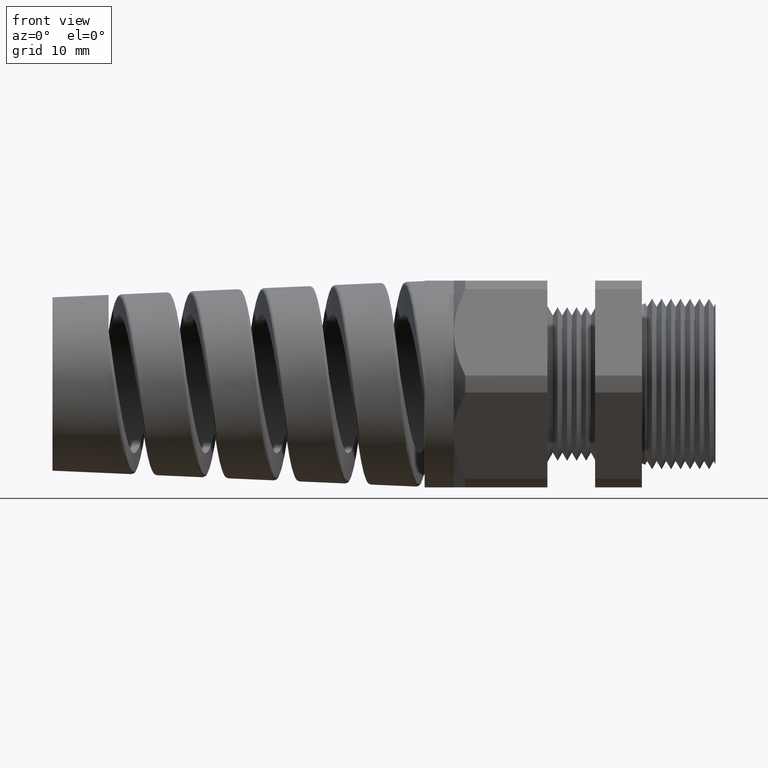
[diagram: clean part render]
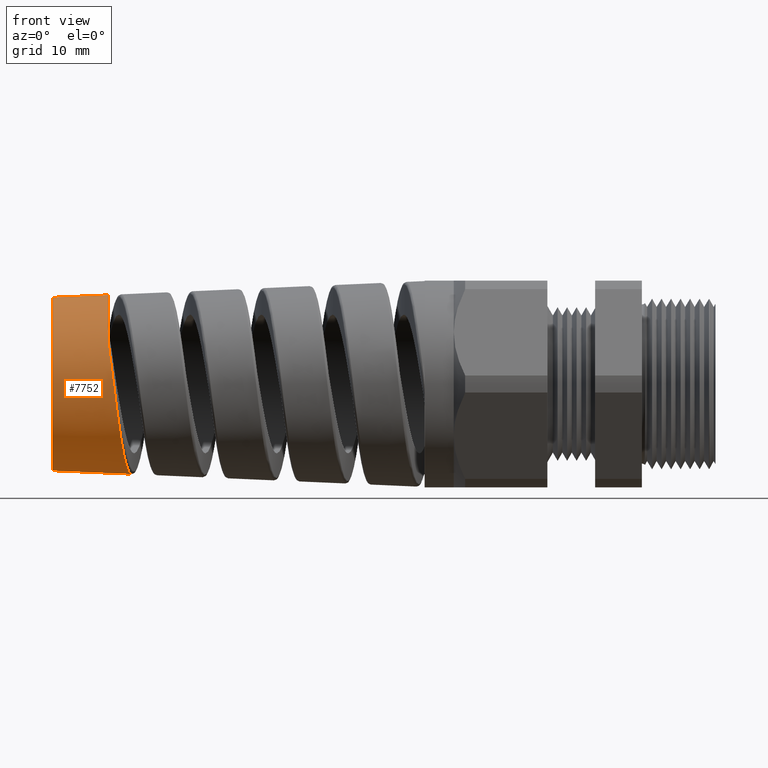
[diagram: same view with one face highlighted and labeled with its STEP entity id]
A machine part, front view. The second image highlights one B-rep face of the part: STEP entity #7752.
In plain terms, the highlighted conical surface has half-angle 2.5 deg.
Its self-contained STEP definition (entity closure, byte-faithful):
#1213 = DIRECTION ( 'NONE',  ( 0.0000000000000000000, 0.0000000000000000000, 1.000000000000000000 ) ) ;
#1214 = DIRECTION ( 'NONE',  ( -1.000000000000000000, 0.0000000000000000000, 0.0000000000000000000 ) ) ;
#1215 = CARTESIAN_POINT ( 'NONE',  ( -2.553780000000000200, 0.0000000000000000000, 0.0000000000000000000 ) ) ;
#1216 = AXIS2_PLACEMENT_3D ( 'NONE', #1215, #1214, #1213 ) ;
#1221 = CIRCLE ( 'NONE', #1216, 0.3750194698511452600 ) ;
#1324 = CARTESIAN_POINT ( 'NONE',  ( -2.553779999999999700, -0.3402502071961909200, 0.1577003464497846700 ) ) ;
#1325 = B_SPLINE_CURVE_WITH_KNOTS ( 'NONE', 3,
 ( #1385, #1384, #1383, #1382, #1381, #1380, #1379, #1378, #1377, #1376, #1375, #1374, #1373, #1372, #1371, #1370, #1369, #1368, #1367, #1366, #1365, #1364, #1363, #1362, #1361, #1360, #1359, #1358 ),
 .UNSPECIFIED., .F., .F.,
 ( 4, 2, 2, 2, 2, 2, 2, 2, 2, 2, 2, 2, 2, 4 ),
 ( 0.2649667563177139400, 0.2673754482317986000, 0.2685797941888409300, 0.2697841401458832600, 0.2709884861029255900, 0.2721928320599679200, 0.2733971780170102500, 0.2746015239740525700, 0.2770102158881372300, 0.2782145618451795600, 0.2794189078022218900, 0.2806232537592642200, 0.2818275997163065500, 0.2842362916303912100 ),
 .UNSPECIFIED. ) ;
#1326 = CARTESIAN_POINT ( 'NONE',  ( -2.790000472440945100, 0.0000000000000000000, 0.0000000000000000000 ) ) ;
#1327 = DIRECTION ( 'NONE',  ( 0.0000000000000000000, 0.0000000000000000000, -1.000000000000000000 ) ) ;
#1328 = DIRECTION ( 'NONE',  ( 1.000000000000000000, 0.0000000000000000000, 0.0000000000000000000 ) ) ;
#1329 = CARTESIAN_POINT ( 'NONE',  ( -1.179999999999999900, 0.0000000000000000000, 0.0000000000000000000 ) ) ;
#1330 = AXIS2_PLACEMENT_3D ( 'NONE', #1329, #1328, #1327 ) ;
#1331 = CONICAL_SURFACE ( 'NONE', #1330, 0.4349999999999998900, 0.04363323129985852100 ) ;
#1332 = FACE_OUTER_BOUND ( 'NONE', #7762, .T. ) ;
#1337 = CARTESIAN_POINT ( 'NONE',  ( -2.458084045388403200, 4.674851566395513700E-013, -0.3791976454620162900 ) ) ;
#1354 = DIRECTION ( 'NONE',  ( 0.0000000000000000000, 0.0000000000000000000, 1.000000000000000000 ) ) ;
#1355 = DIRECTION ( 'NONE',  ( -1.000000000000000000, 0.0000000000000000000, 0.0000000000000000000 ) ) ;
#1356 = AXIS2_PLACEMENT_3D ( 'NONE', #1326, #1355, #1354 ) ;
#1357 = CIRCLE ( 'NONE', #1356, 0.3647058612900793700 ) ;
#1358 = CARTESIAN_POINT ( 'NONE',  ( -2.553779999999999700, -0.3402502071961909200, 0.1577003464497846700 ) ) ;
#1359 = CARTESIAN_POINT ( 'NONE',  ( -2.549730924406136800, -0.3537889392531387000, 0.1289099339625554600 ) ) ;
#1360 = CARTESIAN_POINT ( 'NONE',  ( -2.545773130247833000, -0.3634191421284431200, 0.09906596683517236700 ) ) ;
#1361 = CARTESIAN_POINT ( 'NONE',  ( -2.539787647375750800, -0.3722313462709447300, 0.05280545876677249900 ) ) ;
#1362 = CARTESIAN_POINT ( 'NONE',  ( -2.537774112272624300, -0.3742231578119135600, 0.03705076903016827500 ) ) ;
#1363 = CARTESIAN_POINT ( 'NONE',  ( -2.533746096377311700, -0.3761898647686802200, 0.005394514175253790200 ) ) ;
#1364 = CARTESIAN_POINT ( 'NONE',  ( -2.531751736920574200, -0.3761660414871417800, -0.01034611981081365300 ) ) ;
#1365 = CARTESIAN_POINT ( 'NONE',  ( -2.527769822618608100, -0.3741705809622737400, -0.04165418727412346200 ) ) ;
#1366 = CARTESIAN_POINT ( 'NONE',  ( -2.525782351990732100, -0.3721987916894326000, -0.05722161794748496800 ) ) ;
#1367 = CARTESIAN_POINT ( 'NONE',  ( -2.521784456250542900, -0.3662818798997165600, -0.08817718802003170200 ) ) ;
#1368 = CARTESIAN_POINT ( 'NONE',  ( -2.519761330055371800, -0.3622973359715210800, -0.1036609021644507600 ) ) ;
#1369 = CARTESIAN_POINT ( 'NONE',  ( -2.513760157998796300, -0.3476256927552446900, -0.1486809350702088000 ) ) ;
#1370 = CARTESIAN_POINT ( 'NONE',  ( -2.509819417941821800, -0.3342658944359272500, -0.1770612983909558000 ) ) ;
#1371 = CARTESIAN_POINT ( 'NONE',  ( -2.503810193021163600, -0.3088349312129465300, -0.2171453592347466200 ) ) ;
#1372 = CARTESIAN_POINT ( 'NONE',  ( -2.501795885223006000, -0.2994565592430151700, -0.2300441308558538700 ) ) ;
#1373 = CARTESIAN_POINT ( 'NONE',  ( -2.497816607293785700, -0.2794017333914098900, -0.2542839638585912000 ) ) ;
#1374 = CARTESIAN_POINT ( 'NONE',  ( -2.495837470636996800, -0.2686684400247912900, -0.2657200145180719800 ) ) ;
#1375 = CARTESIAN_POINT ( 'NONE',  ( -2.491869815153684400, -0.2458026385606062500, -0.2872311901382329500 ) ) ;
#1376 = CARTESIAN_POINT ( 'NONE',  ( -2.489881378765295100, -0.2336702968409890600, -0.2973064913273957800 ) ) ;
#1377 = CARTESIAN_POINT ( 'NONE',  ( -2.485862771208625900, -0.2079537205439637400, -0.3160392638389641400 ) ) ;
#1378 = CARTESIAN_POINT ( 'NONE',  ( -2.483875073297817000, -0.1946428647344923500, -0.3244975679848438600 ) ) ;
#1379 = CARTESIAN_POINT ( 'NONE',  ( -2.479911766983802200, -0.1671569058109875800, -0.3396674248375265400 ) ) ;
#1380 = CARTESIAN_POINT ( 'NONE',  ( -2.477936584245406400, -0.1529813615764079300, -0.3463789422206191000 ) ) ;
#1381 = CARTESIAN_POINT ( 'NONE',  ( -2.473968481681486400, -0.1237638314454028000, -0.3580437195681262500 ) ) ;
#1382 = CARTESIAN_POINT ( 'NONE',  ( -2.471962003754098400, -0.1086151231718282300, -0.3630218974597557200 ) ) ;
#1383 = CARTESIAN_POINT ( 'NONE',  ( -2.465978158373710800, -0.06266601988109511700, -0.3749724780486711200 ) ) ;
#1384 = CARTESIAN_POINT ( 'NONE',  ( -2.462056933679646100, -0.03155988264974672600, -0.3790241854131894400 ) ) ;
#1385 = CARTESIAN_POINT ( 'NONE',  ( -2.458084045388403200, 4.674851566395513700E-013, -0.3791976454620162900 ) ) ;
#4177 = EDGE_CURVE ( 'NONE', #7682, #7670, #5306, .T. ) ;
#5305 = CARTESIAN_POINT ( 'NONE',  ( -1.179999999999999900, 5.327213576290984500E-017, 0.4349999999999998900 ) ) ;
#5306 = LINE ( 'NONE', #5305, #5354 ) ;
#5353 = DIRECTION ( 'NONE',  ( 0.9990482215818576900, 5.341834311772757900E-018, 0.04361938736533628500 ) ) ;
#5354 = VECTOR ( 'NONE', #5353, 39.37007874015748100 ) ;
#7670 = VERTEX_POINT ( 'NONE', #9337 ) ;
#7682 = VERTEX_POINT ( 'NONE', #9319 ) ;
#7684 = VERTEX_POINT ( 'NONE', #9318 ) ;
#7686 = EDGE_CURVE ( 'NONE', #7684, #7750, #9313, .T. ) ;
#7692 = ORIENTED_EDGE ( 'NONE', *, *, #4177, .F. ) ;
#7712 = ORIENTED_EDGE ( 'NONE', *, *, #7756, .F. ) ;
#7729 = ORIENTED_EDGE ( 'NONE', *, *, #7733, .T. ) ;
#7731 = ORIENTED_EDGE ( 'NONE', *, *, #7686, .T. ) ;
#7733 = EDGE_CURVE ( 'NONE', #7755, #7670, #1221, .T. ) ;
#7750 = VERTEX_POINT ( 'NONE', #1337 ) ;
#7752 = ADVANCED_FACE ( 'NONE', ( #1332 ), #1331, .T. ) ;
#7754 = EDGE_CURVE ( 'NONE', #7750, #7755, #1325, .T. ) ;
#7755 = VERTEX_POINT ( 'NONE', #1324 ) ;
#7756 = EDGE_CURVE ( 'NONE', #7684, #7682, #1357, .T. ) ;
#7758 = ORIENTED_EDGE ( 'NONE', *, *, #7754, .T. ) ;
#7762 = EDGE_LOOP ( 'NONE', ( #7692, #7712, #7731, #7758, #7729 ) ) ;
#9310 = DIRECTION ( 'NONE',  ( 0.9990482215818576900, 0.0000000000000000000, -0.04361938736533628500 ) ) ;
#9311 = VECTOR ( 'NONE', #9310, 39.37007874015748100 ) ;
#9312 = CARTESIAN_POINT ( 'NONE',  ( -1.179999999999999900, 0.0000000000000000000, -0.4349999999999998900 ) ) ;
#9313 = LINE ( 'NONE', #9312, #9311 ) ;
#9318 = CARTESIAN_POINT ( 'NONE',  ( -2.790000472440945100, 0.0000000000000000000, -0.3647058612900793700 ) ) ;
#9319 = CARTESIAN_POINT ( 'NONE',  ( -2.790000472440945100, 4.636289635318116300E-017, 0.3647058612900793700 ) ) ;
#9337 = CARTESIAN_POINT ( 'NONE',  ( -2.553780000000000200, 4.592663933711405200E-017, 0.3750194698511437600 ) ) ;